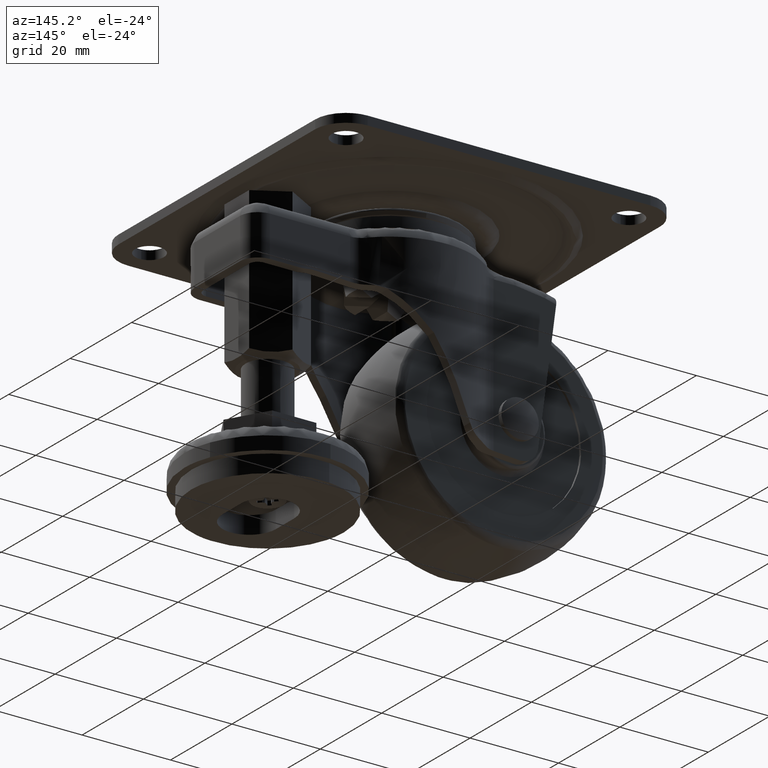
[diagram: clean part render]
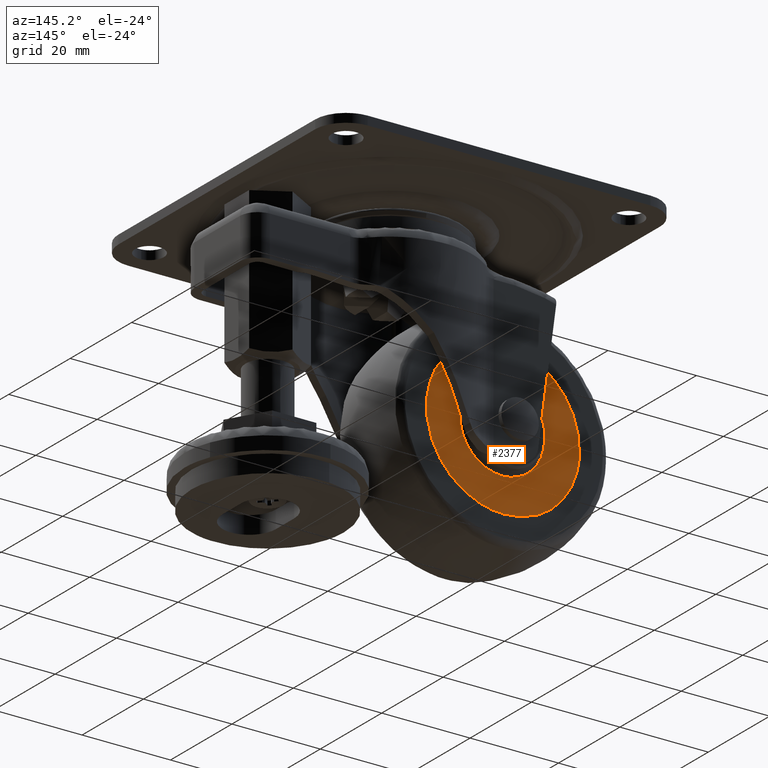
[diagram: same view with one face highlighted and labeled with its STEP entity id]
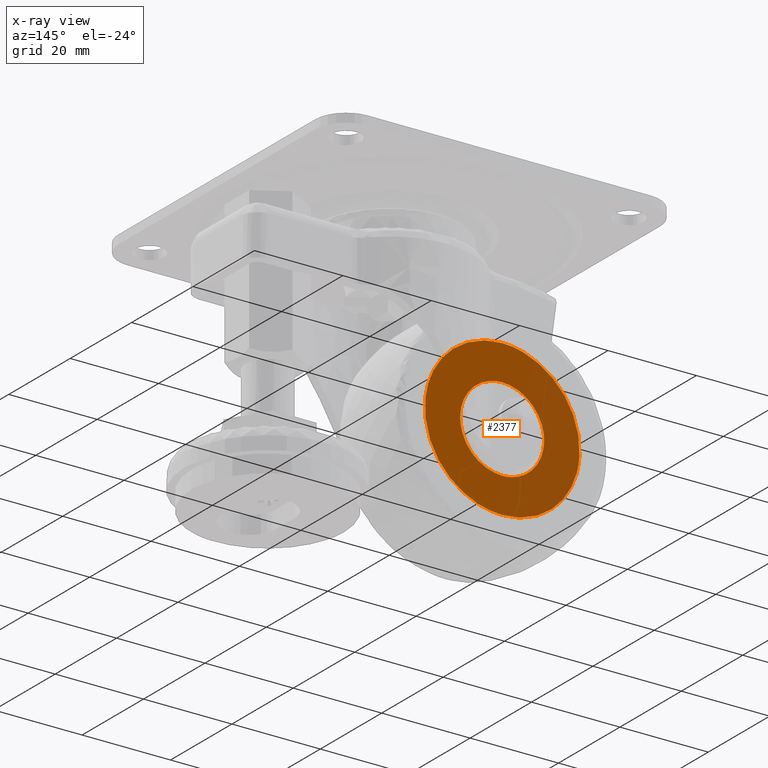
[diagram: x-ray of the same camera — body ghosted, the highlighted face saturated]
A machine part, auxiliary view. The second image highlights one B-rep face of the part: STEP entity #2377.
The next image is the same camera in x-ray: the body ghosted, the highlighted face saturated — about 0% of this face is hidden behind the body in this view.
In plain terms, the highlighted face is a freeform B-spline surface patch.
Its self-contained STEP definition (entity closure, byte-faithful):
#496=CARTESIAN_POINT('',(-1.622328533497062,9.448785643513666,-37.934450659412370));
#497=VERTEX_POINT('',#496);
#498=CARTESIAN_POINT('',(-18.999997000000199,9.448785643517031,-57.500035000000103));
#499=VERTEX_POINT('',#498);
#500=CARTESIAN_POINT('',(-1.622328533497063,9.448785643513666,-37.934450659412377));
#501=CARTESIAN_POINT('',(-1.499997000000201,9.448785643517029,-38.963620367095146));
#502=CARTESIAN_POINT('',(-1.499997000000201,9.448785643517031,-40.000035000000103));
#503=CARTESIAN_POINT('',(-1.499997000000201,9.448785643517031,-57.500035000000103));
#504=CARTESIAN_POINT('',(-18.999997000000199,9.448785643517031,-57.500035000000103));
#512=(BOUNDED_CURVE()B_SPLINE_CURVE(2,(#500,#501,#502,#503,#504),.UNSPECIFIED.,.F.,.U.)B_SPLINE_CURVE_WITH_KNOTS((3,2,3),(0.229562617118706,0.250000000000000,0.500000000000000),.UNSPECIFIED.)CURVE()GEOMETRIC_REPRESENTATION_ITEM()RATIONAL_B_SPLINE_CURVE((0.956027035655957,0.976056116575099,1.0,0.707106781186548,1.0))REPRESENTATION_ITEM(''));
#513=EDGE_CURVE('',#497,#499,#512,.T.);
#554=CARTESIAN_POINT('',(-36.467357295119349,9.448785643522005,-41.068362814870433));
#555=VERTEX_POINT('',#554);
#561=CARTESIAN_POINT('',(-18.999997000000199,9.448785643517031,-57.500035000000103));
#562=CARTESIAN_POINT('',(-35.462373591607175,9.448785643517029,-57.500035000000118));
#563=CARTESIAN_POINT('',(-36.467357295119349,9.448785643522005,-41.068362814870426));
#571=(BOUNDED_CURVE()B_SPLINE_CURVE(2,(#561,#562,#563),.UNSPECIFIED.,.F.,.U.)B_SPLINE_CURVE_WITH_KNOTS((3,3),(0.500000000000000,0.739333175878629),.UNSPECIFIED.)CURVE()GEOMETRIC_REPRESENTATION_ITEM()RATIONAL_B_SPLINE_CURVE((1.0,0.719603742992249,0.976072499537660))REPRESENTATION_ITEM(''));
#572=EDGE_CURVE('',#499,#555,#571,.T.);
#595=CARTESIAN_POINT('',(-18.999997000000199,9.448785643517031,-22.500035000000100));
#596=VERTEX_POINT('',#595);
#597=CARTESIAN_POINT('',(-18.999997000000199,9.448785643517031,-22.500035000000100));
#598=CARTESIAN_POINT('',(-3.456929495849796,9.448785643517031,-22.500035000000100));
#599=CARTESIAN_POINT('',(-1.622328533497063,9.448785643513666,-37.934450659412377));
#607=(BOUNDED_CURVE()B_SPLINE_CURVE(2,(#597,#598,#599),.UNSPECIFIED.,.F.,.U.)B_SPLINE_CURVE_WITH_KNOTS((3,3),(0.0,0.229562617118706),.UNSPECIFIED.)CURVE()GEOMETRIC_REPRESENTATION_ITEM()RATIONAL_B_SPLINE_CURVE((1.0,0.731050664611448,0.956027035655957))REPRESENTATION_ITEM(''));
#608=EDGE_CURVE('',#596,#497,#607,.T.);
#610=CARTESIAN_POINT('',(-36.467357295119349,9.448785643522005,-41.068362814870426));
#611=CARTESIAN_POINT('',(-36.499997000000199,9.448785643517031,-40.534697513911610));
#612=CARTESIAN_POINT('',(-36.499997000000199,9.448785643517031,-40.000035000000103));
#613=CARTESIAN_POINT('',(-36.499997000000192,9.448785643517031,-22.500035000000096));
#614=CARTESIAN_POINT('',(-18.999997000000199,9.448785643517031,-22.500035000000100));
#622=(BOUNDED_CURVE()B_SPLINE_CURVE(2,(#610,#611,#612,#613,#614),.UNSPECIFIED.,.F.,.U.)B_SPLINE_CURVE_WITH_KNOTS((3,2,3),(0.739333175878629,0.750000000000000,1.0),.UNSPECIFIED.)CURVE()GEOMETRIC_REPRESENTATION_ITEM()RATIONAL_B_SPLINE_CURVE((0.976072499537660,0.987503038194298,1.0,0.707106781186548,1.0))REPRESENTATION_ITEM(''));
#623=EDGE_CURVE('',#555,#596,#622,.T.);
#1628=CARTESIAN_POINT('',(-28.499996997966999,9.448785643517027,-40.000035000000103));
#1629=VERTEX_POINT('',#1628);
#1643=CARTESIAN_POINT('',(-18.999997000000199,9.448785643517031,-30.500035000000210));
#1644=VERTEX_POINT('',#1643);
#1645=CARTESIAN_POINT('',(-18.999997000000199,9.448785643517031,-30.500035000000210));
#1646=CARTESIAN_POINT('',(-28.499997000000054,9.448785643517031,-30.500035000000207));
#1647=CARTESIAN_POINT('',(-28.499996997967006,9.448785643517027,-40.000035000000111));
#1655=(BOUNDED_CURVE()B_SPLINE_CURVE(2,(#1645,#1646,#1647),.UNSPECIFIED.,.F.,.U.)B_SPLINE_CURVE_WITH_KNOTS((3,3),(0.500000000000000,0.749999999999999),.UNSPECIFIED.)CURVE()GEOMETRIC_REPRESENTATION_ITEM()RATIONAL_B_SPLINE_CURVE((1.0,0.707106781186549,0.999999999999998))REPRESENTATION_ITEM(''));
#1656=EDGE_CURVE('',#1644,#1629,#1655,.T.);
#1658=CARTESIAN_POINT('',(-18.999997000000199,9.448785643517031,-49.500034999999990));
#1659=VERTEX_POINT('',#1658);
#1660=CARTESIAN_POINT('',(-18.999997000000199,9.448785643517031,-49.500034999999990));
#1661=CARTESIAN_POINT('',(-9.499997000000311,9.448785643517031,-49.500034999999990));
#1662=CARTESIAN_POINT('',(-9.499997000000311,9.448785643517031,-40.000035000000103));
#1663=CARTESIAN_POINT('',(-9.499997000000311,9.448785643517031,-30.500035000000210));
#1664=CARTESIAN_POINT('',(-18.999997000000199,9.448785643517031,-30.500035000000210));
#1672=(BOUNDED_CURVE()B_SPLINE_CURVE(2,(#1660,#1661,#1662,#1663,#1664),.UNSPECIFIED.,.F.,.U.)B_SPLINE_CURVE_WITH_KNOTS((3,2,3),(0.0,0.250000000000000,0.500000000000000),.UNSPECIFIED.)CURVE()GEOMETRIC_REPRESENTATION_ITEM()RATIONAL_B_SPLINE_CURVE((1.0,0.707106781186548,1.0,0.707106781186548,1.0))REPRESENTATION_ITEM(''));
#1673=EDGE_CURVE('',#1659,#1644,#1672,.T.);
#1675=CARTESIAN_POINT('',(-22.356365682402760,9.448785643517025,-48.887373702317717));
#1676=VERTEX_POINT('',#1675);
#1677=CARTESIAN_POINT('',(-22.356365682402760,9.448785643517025,-48.887373702317717));
#1678=CARTESIAN_POINT('',(-20.734098003222222,9.448785643517031,-49.500034999999976));
#1679=CARTESIAN_POINT('',(-18.999997000000199,9.448785643517031,-49.500034999999990));
#1687=(BOUNDED_CURVE()B_SPLINE_CURVE(2,(#1677,#1678,#1679),.UNSPECIFIED.,.F.,.U.)B_SPLINE_CURVE_WITH_KNOTS((3,3),(0.939999999992485,1.0),.UNSPECIFIED.)CURVE()GEOMETRIC_REPRESENTATION_ITEM()RATIONAL_B_SPLINE_CURVE((0.893152553767696,0.929705627475967,1.0))REPRESENTATION_ITEM(''));
#1688=EDGE_CURVE('',#1676,#1659,#1687,.T.);
#1725=CARTESIAN_POINT('',(-28.499996997966999,9.448785643517027,-40.000035000000103));
#1726=CARTESIAN_POINT('',(-28.499997000000100,9.448785643517029,-46.567186252087829));
#1727=CARTESIAN_POINT('',(-22.356365682402753,9.448785643517025,-48.887373702317724));
#1735=(BOUNDED_CURVE()B_SPLINE_CURVE(2,(#1725,#1726,#1727),.UNSPECIFIED.,.F.,.U.)B_SPLINE_CURVE_WITH_KNOTS((3,3),(0.750000000000000,0.939999999992485),.UNSPECIFIED.)CURVE()GEOMETRIC_REPRESENTATION_ITEM()RATIONAL_B_SPLINE_CURVE((1.0,0.777401153710580,0.893152553767696))REPRESENTATION_ITEM(''));
#1736=EDGE_CURVE('',#1629,#1676,#1735,.T.);
#2360=CARTESIAN_POINT('',(-38.247823297602963,9.448785643517031,-20.751784535771559));
#2361=CARTESIAN_POINT('',(-38.247823297602963,9.448785643517031,-59.248283273757941));
#2362=CARTESIAN_POINT('',(0.247934753120333,9.448785643517031,-20.751784535771559));
#2363=CARTESIAN_POINT('',(0.247934753120333,9.448785643517031,-59.248283273757949));
#2364=B_SPLINE_SURFACE_WITH_KNOTS('',1,1,((#2360,#2362),(#2361,#2363)),.UNSPECIFIED.,.F.,.F.,.U.,(2,2),(2,2),(0.0,38.496498737986393),(0.0,38.495758050723289),.UNSPECIFIED.);
#2365=ORIENTED_EDGE('',*,*,#608,.T.);
#2366=ORIENTED_EDGE('',*,*,#513,.T.);
#2367=ORIENTED_EDGE('',*,*,#572,.T.);
#2368=ORIENTED_EDGE('',*,*,#623,.T.);
#2369=EDGE_LOOP('',(#2365,#2366,#2367,#2368));
#2370=FACE_OUTER_BOUND('',#2369,.T.);
#2371=ORIENTED_EDGE('',*,*,#1673,.T.);
#2372=ORIENTED_EDGE('',*,*,#1656,.T.);
#2373=ORIENTED_EDGE('',*,*,#1736,.T.);
#2374=ORIENTED_EDGE('',*,*,#1688,.T.);
#2375=EDGE_LOOP('',(#2371,#2372,#2373,#2374));
#2376=FACE_BOUND('',#2375,.T.);
#2377=ADVANCED_FACE('',(#2370,#2376),#2364,.F.);